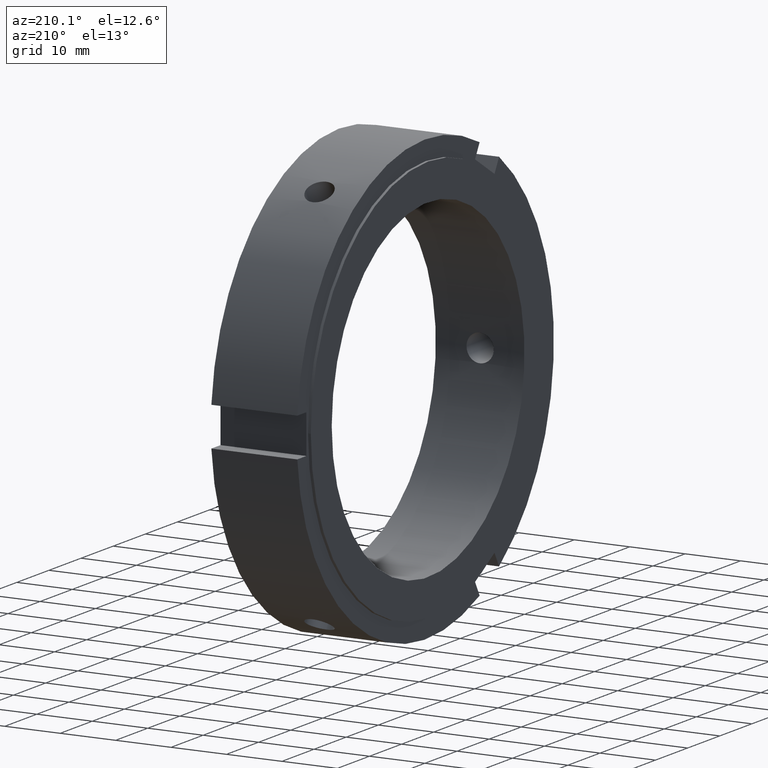
[diagram: clean part render]
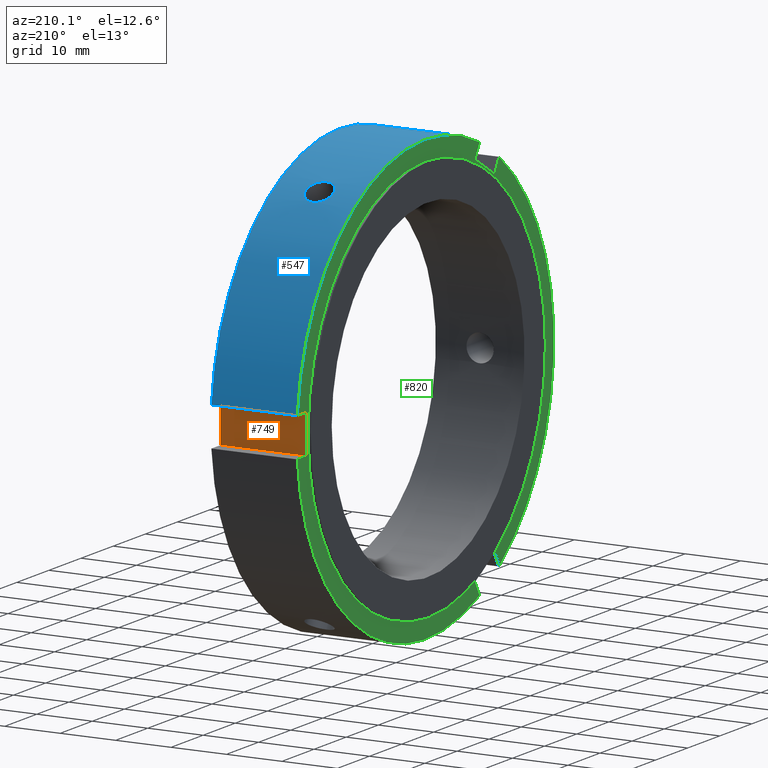
[diagram: same view with three faces highlighted in distinct colors, each labeled with its STEP entity id]
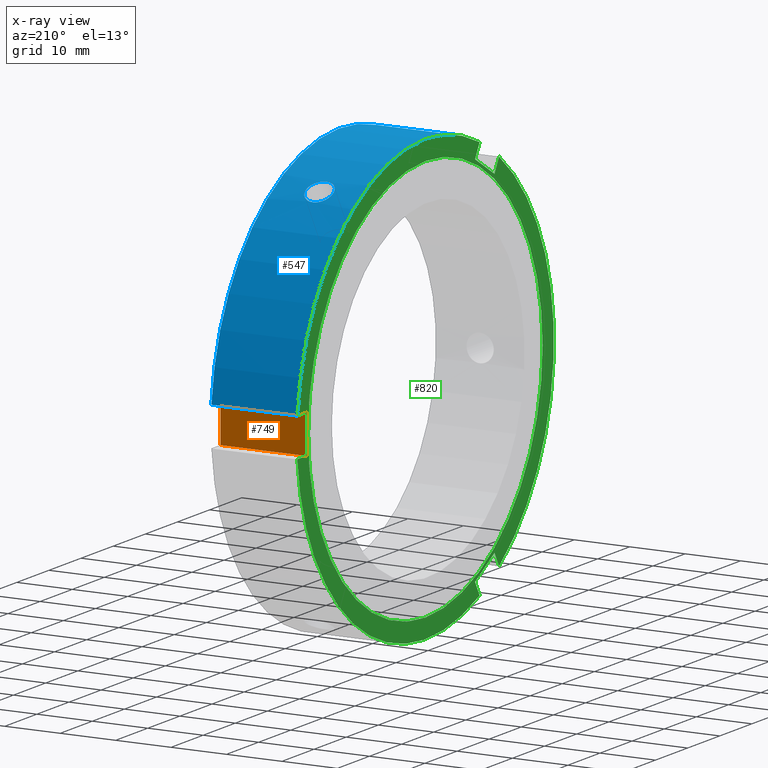
[diagram: x-ray of the same camera — body ghosted, the three highlighted faces saturated]
A machine part, auxiliary view with three faces highlighted in distinct colors.
The next image is the same camera in x-ray (body ghosted, the three faces saturated) — at least one of them is partly hidden behind the body in this view.
Their STEP definitions:

[orange] entity #749 — the highlighted planar face has unit normal (0, -1, 0).
#465=CARTESIAN_POINT('',(15.999999999999993,37.0,-3.499999999999999));
#466=VERTEX_POINT('',#465);
#473=CARTESIAN_POINT('',(15.999999999999993,37.0,3.499999999999999));
#474=VERTEX_POINT('',#473);
#475=CARTESIAN_POINT('',(15.999999999999993,37.0,-3.499999999999999));
#476=DIRECTION('',(0.0,0.0,1.0));
#477=VECTOR('',#476,6.999999999999998);
#478=LINE('',#475,#477);
#479=EDGE_CURVE('',#466,#474,#478,.T.);
#690=CARTESIAN_POINT('',(0.499999999999989,37.0,-3.499999999999999));
#691=VERTEX_POINT('',#690);
#698=CARTESIAN_POINT('',(15.999999999999993,37.0,-3.499999999999999));
#699=DIRECTION('',(-1.0,0.0,0.0));
#700=VECTOR('',#699,15.500000000000004);
#701=LINE('',#698,#700);
#702=EDGE_CURVE('',#466,#691,#701,.T.);
#714=CARTESIAN_POINT('',(0.499999999999989,37.0,3.499999999999999));
#715=VERTEX_POINT('',#714);
#724=CARTESIAN_POINT('',(15.999999999999993,37.0,3.499999999999999));
#725=DIRECTION('',(-1.0,0.0,0.0));
#726=VECTOR('',#725,15.500000000000004);
#727=LINE('',#724,#726);
#728=EDGE_CURVE('',#474,#715,#727,.T.);
#733=CARTESIAN_POINT('',(15.999999999999993,37.0,3.499999999999999));
#734=DIRECTION('',(0.0,-1.0,0.0));
#735=DIRECTION('',(0.0,0.0,-1.0));
#736=AXIS2_PLACEMENT_3D('',#733,#734,#735);
#737=PLANE('',#736);
#738=CARTESIAN_POINT('',(0.499999999999989,37.0,3.499999999999999));
#739=DIRECTION('',(0.0,0.0,-1.0));
#740=VECTOR('',#739,6.999999999999998);
#741=LINE('',#738,#740);
#742=EDGE_CURVE('',#715,#691,#741,.T.);
#743=ORIENTED_EDGE('',*,*,#742,.F.);
#744=ORIENTED_EDGE('',*,*,#728,.F.);
#745=ORIENTED_EDGE('',*,*,#479,.F.);
#746=ORIENTED_EDGE('',*,*,#702,.T.);
#747=EDGE_LOOP('',(#743,#744,#745,#746));
#748=FACE_OUTER_BOUND('',#747,.T.);
#749=ADVANCED_FACE('',(#748),#737,.F.);

[blue] entity #547 — the highlighted cylindrical surface (partial cylindrical patch) has radius 40 mm, axis along (1, 0, 0).
#175=CARTESIAN_POINT('',(7.999999999999991,22.091311322206515,33.346273615883241));
#176=VERTEX_POINT('',#175);
#177=CARTESIAN_POINT('',(7.999999999999991,22.091311322206497,33.346273615883241));
#178=CARTESIAN_POINT('',(8.308778307394176,22.091311322206497,33.346273615883241));
#179=CARTESIAN_POINT('',(8.638084961426577,22.039831017364108,33.380557818267988));
#180=CARTESIAN_POINT('',(9.243785509007935,21.829660793563367,33.518378557813264));
#181=CARTESIAN_POINT('',(9.520186009215445,21.670871628118618,33.621734636446732));
#182=CARTESIAN_POINT('',(9.956657928490522,21.302369483050612,33.856414037040985));
#183=CARTESIAN_POINT('',(10.145851499254618,21.068052620045947,34.003366420318066));
#184=CARTESIAN_POINT('',(10.396774687381194,20.550626462069744,34.318559426805585));
#185=CARTESIAN_POINT('',(10.458499999999994,20.267409729206129,34.486627072236459));
#186=CARTESIAN_POINT('',(10.458499999999994,19.732590270793864,34.795405230518625));
#187=CARTESIAN_POINT('',(10.396774687381193,19.445431053864692,34.956644293239926));
#188=CARTESIAN_POINT('',(10.145851499254611,18.913752824163204,35.247151987386133));
#189=CARTESIAN_POINT('',(9.956657928490522,18.669329895596242,35.376600151644702));
#190=CARTESIAN_POINT('',(9.520186009215445,18.281840500402708,35.578392670325528));
#191=CARTESIAN_POINT('',(9.243785509007930,18.112936927948212,35.664230082129677));
#192=CARTESIAN_POINT('',(8.638084961426571,17.888495554433273,35.777332465287543));
#193=CARTESIAN_POINT('',(8.308778307394174,17.833064411798404,35.804773615883242));
#194=CARTESIAN_POINT('',(7.691221692605808,17.833064411798404,35.804773615883242));
#195=CARTESIAN_POINT('',(7.361915038573410,17.888495554433277,35.777332465287543));
#196=CARTESIAN_POINT('',(6.756214490992052,18.112936927948216,35.664230082129677));
#197=CARTESIAN_POINT('',(6.479813990784539,18.281840500402708,35.578392670325528));
#198=CARTESIAN_POINT('',(6.043342071509461,18.669329895596238,35.376600151644702));
#199=CARTESIAN_POINT('',(5.854148500745371,18.913752824163200,35.247151987386133));
#200=CARTESIAN_POINT('',(5.603225312618791,19.445431053864692,34.956644293239933));
#201=CARTESIAN_POINT('',(5.541499999999991,19.732590270793864,34.795405230518625));
#202=CARTESIAN_POINT('',(5.541499999999990,20.267409729206129,34.486627072236459));
#203=CARTESIAN_POINT('',(5.603225312618792,20.550626462069744,34.318559426805585));
#204=CARTESIAN_POINT('',(5.854148500745366,21.068052620045947,34.003366420318073));
#205=CARTESIAN_POINT('',(6.043342071509461,21.302369483050612,33.856414037040985));
#206=CARTESIAN_POINT('',(6.479813990784537,21.670871628118618,33.621734636446732));
#207=CARTESIAN_POINT('',(6.756214490992050,21.829660793563370,33.518378557813257));
#208=CARTESIAN_POINT('',(7.361915038573407,22.039831017364115,33.380557818267981));
#209=CARTESIAN_POINT('',(7.691221692605809,22.091311322206497,33.346273615883241));
#210=CARTESIAN_POINT('',(7.999999999999993,22.091311322206497,33.346273615883241));
#211=B_SPLINE_CURVE_WITH_KNOTS('',3,(#177,#178,#179,#180,#181,#182,#183,#184,#185,#186,#187,#188,#189,#190,#191,#192,#193,#194,#195,#196,#197,#198,#199,#200,#201,#202,#203,#204,#205,#206,#207,#208,#209,#210),.UNSPECIFIED.,.T.,.U.,(4,2,2,2,2,2,2,2,2,2,2,2,2,2,2,2,4),(0.0,0.092633492218255,0.185266984436510,0.277900431921161,0.370533879405812,0.463167326890462,0.555800774375113,0.648434266593368,0.741067758811623,0.833701251029878,0.926334743248132,1.018968190732783,1.111601638217434,1.204235085702085,1.296868533186735,1.389502025404990,1.482135517623246),.UNSPECIFIED.);
#212=EDGE_CURVE('',#176,#176,#211,.T.);
#265=CARTESIAN_POINT('',(0.499999999999989,-16.892201477651238,36.258151210982021));
#266=VERTEX_POINT('',#265);
#281=CARTESIAN_POINT('',(15.999999999999993,-16.892201477651238,36.258151210982021));
#282=VERTEX_POINT('',#281);
#289=CARTESIAN_POINT('',(0.499999999999989,-16.892201477651238,36.258151210982021));
#290=DIRECTION('',(1.0,0.0,0.0));
#291=VECTOR('',#290,15.500000000000004);
#292=LINE('',#289,#291);
#293=EDGE_CURVE('',#266,#282,#292,.T.);
#481=CARTESIAN_POINT('',(15.999999999999993,39.846580781793563,3.499999999999999));
#482=VERTEX_POINT('',#481);
#489=CARTESIAN_POINT('',(15.999999999999993,0.0,0.0));
#490=DIRECTION('',(1.0,0.0,0.0));
#491=DIRECTION('',(0.0,1.0,0.0));
#492=AXIS2_PLACEMENT_3D('',#489,#490,#491);
#493=CIRCLE('',#492,40.0);
#494=EDGE_CURVE('',#482,#282,#493,.T.);
#520=CARTESIAN_POINT('',(8.249999999999991,0.0,0.0));
#521=DIRECTION('',(1.0,0.0,0.0));
#522=DIRECTION('',(0.0,1.0,0.0));
#523=AXIS2_PLACEMENT_3D('',#520,#521,#522);
#524=CYLINDRICAL_SURFACE('',#523,40.0);
#525=ORIENTED_EDGE('',*,*,#293,.T.);
#526=ORIENTED_EDGE('',*,*,#494,.F.);
#527=CARTESIAN_POINT('',(0.499999999999989,39.846580781793556,3.499999999999999));
#528=VERTEX_POINT('',#527);
#529=CARTESIAN_POINT('',(15.999999999999993,39.846580781793563,3.499999999999999));
#530=DIRECTION('',(-1.0,0.0,0.0));
#531=VECTOR('',#530,15.500000000000004);
#532=LINE('',#529,#531);
#533=EDGE_CURVE('',#482,#528,#532,.T.);
#534=ORIENTED_EDGE('',*,*,#533,.T.);
#535=CARTESIAN_POINT('',(0.499999999999989,0.0,0.0));
#536=DIRECTION('',(1.0,0.0,0.0));
#537=DIRECTION('',(0.0,1.0,0.0));
#538=AXIS2_PLACEMENT_3D('',#535,#536,#537);
#539=CIRCLE('',#538,39.999999999999993);
#540=EDGE_CURVE('',#528,#266,#539,.T.);
#541=ORIENTED_EDGE('',*,*,#540,.T.);
#542=EDGE_LOOP('',(#525,#526,#534,#541));
#543=FACE_OUTER_BOUND('',#542,.T.);
#544=ORIENTED_EDGE('',*,*,#212,.T.);
#545=EDGE_LOOP('',(#544));
#546=FACE_BOUND('',#545,.T.);
#547=ADVANCED_FACE('',(#543,#546),#524,.T.);

[green] entity #820 — the highlighted planar face has unit normal (-1, 0, 0).
#73=CARTESIAN_POINT('',(0.499999999999989,-21.531088913245554,-30.292939940024226));
#74=VERTEX_POINT('',#73);
#75=CARTESIAN_POINT('',(0.499999999999989,-22.954379304142329,-32.758151210982007));
#76=VERTEX_POINT('',#75);
#77=CARTESIAN_POINT('',(0.499999999999989,-21.531088913245561,-30.292939940024233));
#78=DIRECTION('',(0.0,-0.500000000000001,-0.866025403784438));
#79=VECTOR('',#78,2.846580781793542);
#80=LINE('',#77,#79);
#81=EDGE_CURVE('',#74,#76,#80,.T.);
#113=CARTESIAN_POINT('',(0.499999999999989,-16.892201477651263,-36.258151210982007));
#114=VERTEX_POINT('',#113);
#115=CARTESIAN_POINT('',(0.499999999999989,-15.468911086754485,-33.792939940024233));
#116=VERTEX_POINT('',#115);
#117=CARTESIAN_POINT('',(0.499999999999989,-16.892201477651270,-36.258151210982007));
#118=DIRECTION('',(0.0,0.500000000000001,0.866025403784438));
#119=VECTOR('',#118,2.846580781793542);
#120=LINE('',#117,#119);
#121=EDGE_CURVE('',#114,#116,#120,.T.);
#153=CARTESIAN_POINT('',(0.499999999999989,-15.468911086754492,-33.792939940024233));
#154=DIRECTION('',(0.0,-0.866025403784438,0.500000000000001));
#155=VECTOR('',#154,7.000000000000005);
#156=LINE('',#153,#155);
#157=EDGE_CURVE('',#116,#74,#156,.T.);
#263=CARTESIAN_POINT('',(0.499999999999989,-15.468911086754460,33.792939940024233));
#264=VERTEX_POINT('',#263);
#265=CARTESIAN_POINT('',(0.499999999999989,-16.892201477651238,36.258151210982021));
#266=VERTEX_POINT('',#265);
#267=CARTESIAN_POINT('',(0.499999999999992,-15.468911086754463,33.792939940024240));
#268=DIRECTION('',(0.0,-0.500000000000000,0.866025403784439));
#269=VECTOR('',#268,2.846580781793556);
#270=LINE('',#267,#269);
#271=EDGE_CURVE('',#264,#266,#270,.T.);
#303=CARTESIAN_POINT('',(0.499999999999989,-22.954379304142307,32.758151210982021));
#304=VERTEX_POINT('',#303);
#305=CARTESIAN_POINT('',(0.499999999999989,-21.531088913245529,30.292939940024240));
#306=VERTEX_POINT('',#305);
#307=CARTESIAN_POINT('',(0.499999999999992,-22.954379304142307,32.758151210982028));
#308=DIRECTION('',(0.0,0.500000000000000,-0.866025403784439));
#309=VECTOR('',#308,2.846580781793556);
#310=LINE('',#307,#309);
#311=EDGE_CURVE('',#304,#306,#310,.T.);
#343=CARTESIAN_POINT('',(0.499999999999992,-21.531088913245533,30.292939940024247));
#344=DIRECTION('',(0.0,0.866025403784439,0.500000000000000));
#345=VECTOR('',#344,6.999999999999992);
#346=LINE('',#343,#345);
#347=EDGE_CURVE('',#306,#264,#346,.T.);
#527=CARTESIAN_POINT('',(0.499999999999989,39.846580781793556,3.499999999999999));
#528=VERTEX_POINT('',#527);
#535=CARTESIAN_POINT('',(0.499999999999989,0.0,0.0));
#536=DIRECTION('',(1.0,0.0,0.0));
#537=DIRECTION('',(0.0,1.0,0.0));
#538=AXIS2_PLACEMENT_3D('',#535,#536,#537);
#539=CIRCLE('',#538,39.999999999999993);
#540=EDGE_CURVE('',#528,#266,#539,.T.);
#554=CARTESIAN_POINT('',(0.499999999999989,39.846580781793556,-3.499999999999999));
#555=VERTEX_POINT('',#554);
#556=CARTESIAN_POINT('',(0.499999999999989,0.0,0.0));
#557=DIRECTION('',(1.0,0.0,0.0));
#558=DIRECTION('',(0.0,1.0,0.0));
#559=AXIS2_PLACEMENT_3D('',#556,#557,#558);
#560=CIRCLE('',#559,39.999999999999993);
#561=EDGE_CURVE('',#114,#555,#560,.T.);
#584=CARTESIAN_POINT('',(0.499999999999989,0.0,0.0));
#585=DIRECTION('',(1.0,0.0,0.0));
#586=DIRECTION('',(0.0,1.0,0.0));
#587=AXIS2_PLACEMENT_3D('',#584,#585,#586);
#588=CIRCLE('',#587,39.999999999999993);
#589=EDGE_CURVE('',#304,#76,#588,.T.);
#690=CARTESIAN_POINT('',(0.499999999999989,37.0,-3.499999999999999));
#691=VERTEX_POINT('',#690);
#692=CARTESIAN_POINT('',(0.499999999999989,37.0,-3.499999999999999));
#693=DIRECTION('',(0.0,1.0,0.0));
#694=VECTOR('',#693,2.846580781793556);
#695=LINE('',#692,#694);
#696=EDGE_CURVE('',#691,#555,#695,.T.);
#714=CARTESIAN_POINT('',(0.499999999999989,37.0,3.499999999999999));
#715=VERTEX_POINT('',#714);
#716=CARTESIAN_POINT('',(0.499999999999989,39.846580781793556,3.499999999999999));
#717=DIRECTION('',(0.0,-1.0,0.0));
#718=VECTOR('',#717,2.846580781793556);
#719=LINE('',#716,#718);
#720=EDGE_CURVE('',#528,#715,#719,.T.);
#738=CARTESIAN_POINT('',(0.499999999999989,37.0,3.499999999999999));
#739=DIRECTION('',(0.0,0.0,-1.0));
#740=VECTOR('',#739,6.999999999999998);
#741=LINE('',#738,#740);
#742=EDGE_CURVE('',#715,#691,#741,.T.);
#783=CARTESIAN_POINT('',(0.499999999999989,36.500000000000000,0.0));
#784=VERTEX_POINT('',#783);
#785=CARTESIAN_POINT('',(0.499999999999989,0.0,0.0));
#786=DIRECTION('',(1.0,0.0,0.0));
#787=DIRECTION('',(0.0,1.0,0.0));
#788=AXIS2_PLACEMENT_3D('',#785,#786,#787);
#789=CIRCLE('',#788,36.500000000000000);
#790=EDGE_CURVE('',#784,#784,#789,.T.);
#798=CARTESIAN_POINT('',(0.499999999999989,38.250000000000000,0.0));
#799=DIRECTION('',(-1.0,0.0,0.0));
#800=DIRECTION('',(0.0,0.0,1.0));
#801=AXIS2_PLACEMENT_3D('',#798,#799,#800);
#802=PLANE('',#801);
#803=ORIENTED_EDGE('',*,*,#81,.T.);
#804=ORIENTED_EDGE('',*,*,#589,.F.);
#805=ORIENTED_EDGE('',*,*,#311,.T.);
#806=ORIENTED_EDGE('',*,*,#347,.T.);
#807=ORIENTED_EDGE('',*,*,#271,.T.);
#808=ORIENTED_EDGE('',*,*,#540,.F.);
#809=ORIENTED_EDGE('',*,*,#720,.T.);
#810=ORIENTED_EDGE('',*,*,#742,.T.);
#811=ORIENTED_EDGE('',*,*,#696,.T.);
#812=ORIENTED_EDGE('',*,*,#561,.F.);
#813=ORIENTED_EDGE('',*,*,#121,.T.);
#814=ORIENTED_EDGE('',*,*,#157,.T.);
#815=EDGE_LOOP('',(#803,#804,#805,#806,#807,#808,#809,#810,#811,#812,#813,#814));
#816=FACE_OUTER_BOUND('',#815,.T.);
#817=ORIENTED_EDGE('',*,*,#790,.T.);
#818=EDGE_LOOP('',(#817));
#819=FACE_BOUND('',#818,.T.);
#820=ADVANCED_FACE('',(#816,#819),#802,.T.);